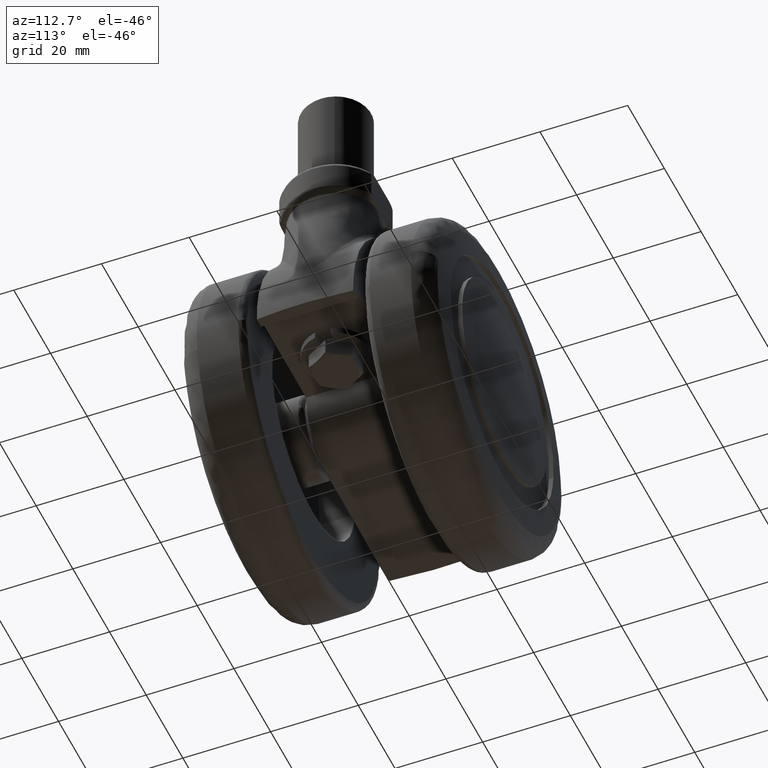
[diagram: clean part render]
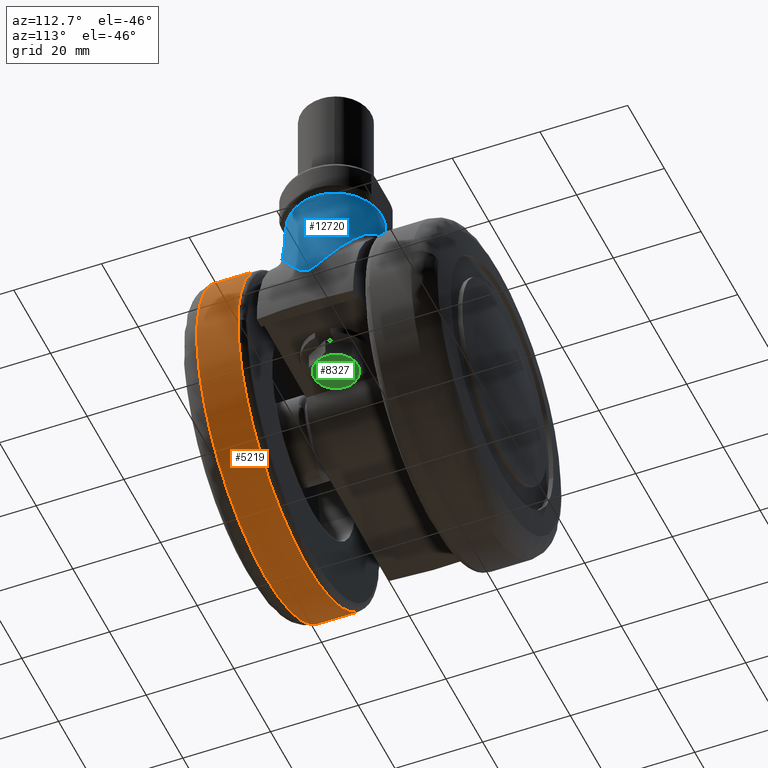
[diagram: same view with three faces highlighted in distinct colors, each labeled with its STEP entity id]
A machine part, auxiliary view with three faces highlighted in distinct colors.
Their STEP definitions:

[orange] entity #5219 — the highlighted face is a freeform B-spline surface patch.
#4992=CARTESIAN_POINT('',(-28.357530057848908,-24.399335000005490,-24.537736020631431));
#4993=VERTEX_POINT('',#4992);
#5026=CARTESIAN_POINT('',(25.334630804024130,-24.399335000005490,27.647901946147439));
#5027=VERTEX_POINT('',#5026);
#5041=CARTESIAN_POINT('',(25.334630846154258,-14.999999998324570,27.647901907541019));
#5042=VERTEX_POINT('',#5041);
#5043=CARTESIAN_POINT('',(25.334630804024130,-24.399335000005490,27.647901946147439));
#5044=CARTESIAN_POINT('',(25.334630846154258,-14.999999998324570,27.647901907541019));
#5045=QUASI_UNIFORM_CURVE('',1,(#5043,#5044),.UNSPECIFIED.,.F.,.U.);
#5046=EDGE_CURVE('',#5027,#5042,#5045,.T.);
#5080=CARTESIAN_POINT('',(-28.357531062064691,-14.999999997795680,-24.537734860087301));
#5081=VERTEX_POINT('',#5080);
#5095=CARTESIAN_POINT('',(-28.357530057848908,-24.399335000005490,-24.537736020631431));
#5096=CARTESIAN_POINT('',(-28.357531062064691,-14.999999997795680,-24.537734860087301));
#5097=QUASI_UNIFORM_CURVE('',1,(#5095,#5096),.UNSPECIFIED.,.F.,.U.);
#5098=EDGE_CURVE('',#4993,#5081,#5097,.T.);
#5103=CARTESIAN_POINT('',(25.334632785587250,-24.634318376232869,27.647900130379639));
#5104=CARTESIAN_POINT('',(52.982532915966900,-24.634318376232862,2.313267344792387));
#5105=CARTESIAN_POINT('',(27.647900130379639,-24.634318376232869,-25.334632785587250));
#5106=CARTESIAN_POINT('',(2.313267344792387,-24.634318376232862,-52.982532915966900));
#5107=CARTESIAN_POINT('',(-25.334632785587250,-24.634318376232869,-27.647900130379639));
#5108=CARTESIAN_POINT('',(-26.936160323454800,-24.634318376232866,-26.180370521384233));
#5109=CARTESIAN_POINT('',(-28.357529091336133,-24.634318376232862,-24.537737137601422));
#5110=CARTESIAN_POINT('',(25.334632785587250,-14.759142034221910,27.647900130379639));
#5111=CARTESIAN_POINT('',(52.982532915966900,-14.759142034221913,2.313267344792387));
#5112=CARTESIAN_POINT('',(27.647900130379639,-14.759142034221910,-25.334632785587250));
#5113=CARTESIAN_POINT('',(2.313267344792387,-14.759142034221913,-52.982532915966900));
#5114=CARTESIAN_POINT('',(-25.334632785587250,-14.759142034221910,-27.647900130379639));
#5115=CARTESIAN_POINT('',(-26.936160323454800,-14.759142034221902,-26.180370521384233));
#5116=CARTESIAN_POINT('',(-28.357529091336133,-14.759142034221908,-24.537737137601422));
#5124=(BOUNDED_SURFACE()B_SPLINE_SURFACE(2,1,((#5103,#5110),(#5104,#5111),(#5105,#5112),(#5106,#5113),(#5107,#5114),(#5108,#5115),(#5109,#5116)),.UNSPECIFIED.,.F.,.F.,.U.)B_SPLINE_SURFACE_WITH_KNOTS((3,2,2,3),(2,2),(0.0,62.132034355964237,124.264068711928500,129.234631460405610),(0.0,9.875176342010960),.UNSPECIFIED.)GEOMETRIC_REPRESENTATION_ITEM()RATIONAL_B_SPLINE_SURFACE(((1.0,1.0),(0.707106781186548,0.707106781186548),(1.0,1.0),(0.707106781186548,0.707106781186548),(1.0,1.0),(0.976568542494924,0.976568542494924),(0.956886118190660,0.956886118190660)))REPRESENTATION_ITEM('')SURFACE());
#5125=CARTESIAN_POINT('',(0.0,-24.399335000005451,-37.500000000000000));
#5126=VERTEX_POINT('',#5125);
#5127=CARTESIAN_POINT('',(0.0,-24.399335000005451,-37.500000000000000));
#5128=CARTESIAN_POINT('',(-17.141298915480817,-24.399335000005458,-37.499999999999993));
#5129=CARTESIAN_POINT('',(-28.357530057848937,-24.399335000005454,-24.537736020631442));
#5137=(BOUNDED_CURVE()B_SPLINE_CURVE(2,(#5127,#5128,#5129),.UNSPECIFIED.,.F.,.U.)B_SPLINE_CURVE_WITH_KNOTS((3,3),(0.500000000000000,0.635882125899661),.UNSPECIFIED.)CURVE()GEOMETRIC_REPRESENTATION_ITEM()RATIONAL_B_SPLINE_CURVE((1.0,0.840804187064134,0.854663298096670))REPRESENTATION_ITEM(''));
#5138=EDGE_CURVE('',#5126,#4993,#5137,.T.);
#5139=ORIENTED_EDGE('',*,*,#5138,.T.);
#5140=ORIENTED_EDGE('',*,*,#5098,.T.);
#5141=CARTESIAN_POINT('',(0.0,-15.0,-37.500000000000000));
#5142=VERTEX_POINT('',#5141);
#5143=CARTESIAN_POINT('',(0.0,-15.0,-37.500000000000000));
#5144=CARTESIAN_POINT('',(-17.141299843162088,-15.000000000000002,-37.500000000000000));
#5145=CARTESIAN_POINT('',(-28.357531062064695,-14.999999997795685,-24.537734860087301));
#5153=(BOUNDED_CURVE()B_SPLINE_CURVE(2,(#5143,#5144,#5145),.UNSPECIFIED.,.F.,.U.)B_SPLINE_CURVE_WITH_KNOTS((3,3),(0.500000000000000,0.635882132082846),.UNSPECIFIED.)CURVE()GEOMETRIC_REPRESENTATION_ITEM()RATIONAL_B_SPLINE_CURVE((1.0,0.840804179820082,0.854663299357961))REPRESENTATION_ITEM(''));
#5154=EDGE_CURVE('',#5142,#5081,#5153,.T.);
#5155=ORIENTED_EDGE('',*,*,#5154,.F.);
#5156=CARTESIAN_POINT('',(37.488157098123487,-14.999999993783151,0.942378579134925));
#5157=VERTEX_POINT('',#5156);
#5158=CARTESIAN_POINT('',(37.488157098123501,-14.999999993783149,0.942378579134925));
#5159=CARTESIAN_POINT('',(37.500000000000000,-14.999999999999998,0.471263704636508));
#5160=CARTESIAN_POINT('',(37.500000000000000,-15.0,0.0));
#5161=CARTESIAN_POINT('',(37.500000000000000,-14.999999999999996,-37.500000000000000));
#5162=CARTESIAN_POINT('',(0.0,-15.0,-37.500000000000000));
#5170=(BOUNDED_CURVE()B_SPLINE_CURVE(2,(#5158,#5159,#5160,#5161,#5162),.UNSPECIFIED.,.F.,.U.)B_SPLINE_CURVE_WITH_KNOTS((3,2,3),(0.245579891769716,0.250000000000000,0.500000000000000),.UNSPECIFIED.)CURVE()GEOMETRIC_REPRESENTATION_ITEM()RATIONAL_B_SPLINE_CURVE((0.989826157681370,0.994821521091714,1.0,0.707106781186547,1.0))REPRESENTATION_ITEM(''));
#5171=EDGE_CURVE('',#5157,#5142,#5170,.T.);
#5172=ORIENTED_EDGE('',*,*,#5171,.F.);
#5173=CARTESIAN_POINT('',(25.334630846154262,-14.999999998324570,27.647901907541016));
#5174=CARTESIAN_POINT('',(37.087558621789391,-14.999999996493150,16.878329317438041));
#5175=CARTESIAN_POINT('',(37.488157098123494,-14.999999993783153,0.942378579134925));
#5183=(BOUNDED_CURVE()B_SPLINE_CURVE(2,(#5173,#5174,#5175),.UNSPECIFIED.,.F.,.U.)B_SPLINE_CURVE_WITH_KNOTS((3,3),(0.118415198494578,0.245579891769716),.UNSPECIFIED.)CURVE()GEOMETRIC_REPRESENTATION_ITEM()RATIONAL_B_SPLINE_CURVE((0.853959782145049,0.846111609806280,0.989826157681370))REPRESENTATION_ITEM(''));
#5184=EDGE_CURVE('',#5042,#5157,#5183,.T.);
#5185=ORIENTED_EDGE('',*,*,#5184,.F.);
#5186=ORIENTED_EDGE('',*,*,#5046,.F.);
#5187=CARTESIAN_POINT('',(37.260424144492191,-24.399335001037620,-4.232114432827082));
#5188=VERTEX_POINT('',#5187);
#5189=CARTESIAN_POINT('',(25.334630804024133,-24.399335000005486,27.647901946147446));
#5190=CARTESIAN_POINT('',(37.499999999999993,-24.399335000005451,16.500396512461588));
#5191=CARTESIAN_POINT('',(37.500000000000000,-24.399335000005451,0.0));
#5192=CARTESIAN_POINT('',(37.500000000000000,-24.399335000005447,-2.122838293787377));
#5193=CARTESIAN_POINT('',(37.260424144492184,-24.399335001037628,-4.232114432827083));
#5201=(BOUNDED_CURVE()B_SPLINE_CURVE(2,(#5189,#5190,#5191,#5192,#5193),.UNSPECIFIED.,.F.,.U.)B_SPLINE_CURVE_WITH_KNOTS((3,2,3),(0.118415198264547,0.250000000000000,0.269555763444004),.UNSPECIFIED.)CURVE()GEOMETRIC_REPRESENTATION_ITEM()RATIONAL_B_SPLINE_CURVE((0.853959782173443,0.845838815491093,1.0,0.977088997994125,0.957762333072186))REPRESENTATION_ITEM(''));
#5202=EDGE_CURVE('',#5027,#5188,#5201,.T.);
#5203=ORIENTED_EDGE('',*,*,#5202,.T.);
#5204=CARTESIAN_POINT('',(37.260424144492191,-24.399335001037628,-4.232114432827082));
#5205=CARTESIAN_POINT('',(33.481790328760539,-24.399335000005458,-37.499999999999993));
#5206=CARTESIAN_POINT('',(0.0,-24.399335000005451,-37.500000000000000));
#5214=(BOUNDED_CURVE()B_SPLINE_CURVE(2,(#5204,#5205,#5206),.UNSPECIFIED.,.F.,.U.)B_SPLINE_CURVE_WITH_KNOTS((3,3),(0.269555763444004,0.500000000000000),.UNSPECIFIED.)CURVE()GEOMETRIC_REPRESENTATION_ITEM()RATIONAL_B_SPLINE_CURVE((0.957762333072186,0.730017783192423,1.0))REPRESENTATION_ITEM(''));
#5215=EDGE_CURVE('',#5188,#5126,#5214,.T.);
#5216=ORIENTED_EDGE('',*,*,#5215,.T.);
#5217=EDGE_LOOP('',(#5139,#5140,#5155,#5172,#5185,#5186,#5203,#5216));
#5218=FACE_OUTER_BOUND('',#5217,.T.);
#5219=ADVANCED_FACE('',(#5218),#5124,.T.);

[blue] entity #12720 — the highlighted face is a freeform B-spline surface patch.
#11213=CARTESIAN_POINT('',(9.734874135307969,2.875159400437090,39.0));
#11214=VERTEX_POINT('',#11213);
#11251=CARTESIAN_POINT('',(9.734874135308280,-2.875159400438115,39.0));
#11252=VERTEX_POINT('',#11251);
#11384=CARTESIAN_POINT('',(15.834273644007199,-9.424800640168330,36.042992598005412));
#11385=VERTEX_POINT('',#11384);
#11401=CARTESIAN_POINT('',(9.734874135308280,-2.875159400438115,39.0));
#11402=CARTESIAN_POINT('',(9.765014946852586,-2.971725987100927,38.987961932139498));
#11403=CARTESIAN_POINT('',(9.796699416023380,-3.067957749255542,38.975272131350849));
#11404=CARTESIAN_POINT('',(9.863174507820219,-3.259745863016546,38.948558339544078));
#11405=CARTESIAN_POINT('',(9.898041406330020,-3.355497784002150,38.934503446514952));
#11406=CARTESIAN_POINT('',(10.006728428578230,-3.640148634965251,38.890530961459071));
#11407=CARTESIAN_POINT('',(10.084478166912660,-3.826137806987287,38.858870211924213));
#11408=CARTESIAN_POINT('',(10.332785888984800,-4.373272351155762,38.756894622463513));
#11409=CARTESIAN_POINT('',(10.518355652744630,-4.723619845631813,38.679613890553057));
#11410=CARTESIAN_POINT('',(10.926585075179609,-5.397147074816104,38.505940396580783));
#11411=CARTESIAN_POINT('',(11.149259347742349,-5.720317123013894,38.409544060022732));
#11412=CARTESIAN_POINT('',(11.509890872524030,-6.185149551346111,38.249585396609803));
#11413=CARTESIAN_POINT('',(11.634547182277871,-6.336766173946026,38.193698887509989));
#11414=CARTESIAN_POINT('',(11.828122530780670,-6.559198968923881,38.105833937558728));
#11415=CARTESIAN_POINT('',(11.893575072163550,-6.632308580095542,38.075950026399113));
#11416=CARTESIAN_POINT('',(12.025779794831941,-6.775953905039536,38.015215864299982));
#11417=CARTESIAN_POINT('',(12.092608204217830,-6.846577595190703,37.984331051875913));
#11418=CARTESIAN_POINT('',(12.430248689094460,-7.193857892863472,37.827311391866182));
#11419=CARTESIAN_POINT('',(12.711520939718110,-7.453052229230631,37.693405138172643));
#11420=CARTESIAN_POINT('',(13.293633666889081,-7.937272633191943,37.408568752348373));
#11421=CARTESIAN_POINT('',(13.594484183909090,-8.162284788316734,37.257635878864043));
#11422=CARTESIAN_POINT('',(14.058920017241670,-8.475670662809202,37.017877502471123));
#11423=CARTESIAN_POINT('',(14.215929892272550,-8.576103517511875,36.935729142439747));
#11424=CARTESIAN_POINT('',(14.454585433310600,-8.720843212216183,36.809069559548931));
#11425=CARTESIAN_POINT('',(14.534762874890280,-8.768162339423656,36.766221692821219));
#11426=CARTESIAN_POINT('',(14.695598953699900,-8.860539796690857,36.679655454487850));
#11427=CARTESIAN_POINT('',(14.776209515660611,-8.905574575668155,36.635963875234751));
#11428=CARTESIAN_POINT('',(15.180156851201581,-9.125156029700733,36.415462183829163));
#11429=CARTESIAN_POINT('',(15.506162540292291,-9.282971687857856,36.232525502262099));
#11430=CARTESIAN_POINT('',(15.834273644007190,-9.424800640168330,36.042992598005377));
#11431=B_SPLINE_CURVE_WITH_KNOTS('',3,(#11401,#11402,#11403,#11404,#11405,#11406,#11407,#11408,#11409,#11410,#11411,#11412,#11413,#11414,#11415,#11416,#11417,#11418,#11419,#11420,#11421,#11422,#11423,#11424,#11425,#11426,#11427,#11428,#11429,#11430),.UNSPECIFIED.,.F.,.U.,(4,2,2,2,2,2,2,2,2,2,2,2,2,2,4),(0.0,0.031250000000000,0.062500000000000,0.125000000000000,0.250000000000000,0.375000000000000,0.437500000000000,0.468750000000001,0.500000000000001,0.625000000000001,0.750000000000002,0.812500000000003,0.843750000000003,0.875000000000003,1.0),.UNSPECIFIED.);
#11432=EDGE_CURVE('',#11252,#11385,#11431,.T.);
#11567=CARTESIAN_POINT('',(15.834272163024050,9.424800000000001,36.042993453493153));
#11568=VERTEX_POINT('',#11567);
#11620=CARTESIAN_POINT('',(15.834272163024030,9.424800000000031,36.042993453493139));
#11621=CARTESIAN_POINT('',(15.507307004264360,9.283466341797638,36.231864388182878));
#11622=CARTESIAN_POINT('',(15.183217956223659,9.126588671450643,36.413732003489862));
#11623=CARTESIAN_POINT('',(14.542307384382291,8.778655094792176,36.763701596248048));
#11624=CARTESIAN_POINT('',(14.225479566498890,8.587615547346342,36.931805288436969));
#11625=CARTESIAN_POINT('',(13.757141502596960,8.272252911238834,37.173708558238673));
#11626=CARTESIAN_POINT('',(13.602896192294541,8.162792457947649,37.252264001329451));
#11627=CARTESIAN_POINT('',(13.298873120510450,7.935196166215691,37.405057824339643));
#11628=CARTESIAN_POINT('',(13.149648062189900,7.817479162857781,37.479019873976704));
#11629=CARTESIAN_POINT('',(12.710647610550110,7.452368673953901,37.693838785172048));
#11630=CARTESIAN_POINT('',(12.429523251913780,7.193045679702175,37.827641975410202));
#11631=CARTESIAN_POINT('',(11.892529837133189,6.640852731537313,38.077384226820762));
#11632=CARTESIAN_POINT('',(11.636648015730801,6.347997167485482,38.193326844980398));
#11633=CARTESIAN_POINT('',(11.274060772394190,5.881437445221686,38.354205244321427));
#11634=CARTESIAN_POINT('',(11.156487775333989,5.720934618763776,38.405764140315988));
#11635=CARTESIAN_POINT('',(10.931703898116970,5.394521469722281,38.503345159788402));
#11636=CARTESIAN_POINT('',(10.824167740370379,5.228237964098526,38.549514434549387));
#11637=CARTESIAN_POINT('',(10.516319186505450,4.720125799719843,38.680475196407713));
#11638=CARTESIAN_POINT('',(10.330719855956330,4.369066170604384,38.757749469488267));
#11639=CARTESIAN_POINT('',(10.083301114738109,3.823368784489873,38.859350381706143));
#11640=CARTESIAN_POINT('',(10.006002576978270,3.638277734453351,38.890824975990952));
#11641=CARTESIAN_POINT('',(9.898124002622998,3.355698993728345,38.934469853992752));
#11642=CARTESIAN_POINT('',(9.863510252711381,3.260681806607597,38.948423123941588));
#11643=CARTESIAN_POINT('',(9.797037506755521,3.068965567155710,38.975136555289090));
#11644=CARTESIAN_POINT('',(9.765141817261602,2.972132460640318,38.987911260823253));
#11645=CARTESIAN_POINT('',(9.734874135307935,2.875159400437097,38.999999999999979));
#11646=B_SPLINE_CURVE_WITH_KNOTS('',3,(#11620,#11621,#11622,#11623,#11624,#11625,#11626,#11627,#11628,#11629,#11630,#11631,#11632,#11633,#11634,#11635,#11636,#11637,#11638,#11639,#11640,#11641,#11642,#11643,#11644,#11645),.UNSPECIFIED.,.F.,.U.,(4,2,2,2,2,2,2,2,2,2,2,2,4),(0.0,0.125000000000000,0.250000000000000,0.312500000000000,0.375000000000000,0.499999999999999,0.624999999999999,0.687499999999999,0.749999999999999,0.875000000000000,0.937500000000000,0.968750000000000,1.0),.UNSPECIFIED.);
#11647=EDGE_CURVE('',#11568,#11214,#11646,.T.);
#11782=CARTESIAN_POINT('',(26.877747129820001,-9.424800640175180,27.080546258881650));
#11783=VERTEX_POINT('',#11782);
#11797=CARTESIAN_POINT('',(15.834273644007199,-9.424800640168330,36.042992598005412));
#11798=CARTESIAN_POINT('',(15.957821354711440,-9.478205239416715,35.971625429012043));
#11799=CARTESIAN_POINT('',(16.080474879437510,-9.528550747649826,35.896862832956977));
#11800=CARTESIAN_POINT('',(16.324467108684779,-9.623992687113347,35.741863585670067));
#11801=CARTESIAN_POINT('',(16.445983128545819,-9.669145522698260,35.661493388375632));
#11802=CARTESIAN_POINT('',(16.807137740395639,-9.796993914353118,35.414900180527688));
#11803=CARTESIAN_POINT('',(17.043792159563601,-9.872324009430907,35.243068456802533));
#11804=CARTESIAN_POINT('',(17.511979131786639,-10.007517437380070,34.889408490841298));
#11805=CARTESIAN_POINT('',(17.743479453118120,-10.067340560872999,34.707530818160052));
#11806=CARTESIAN_POINT('',(18.203417960249471,-10.174012160180320,34.336919483093517));
#11807=CARTESIAN_POINT('',(18.431842068133388,-10.220845274567351,34.148164750146591));
#11808=CARTESIAN_POINT('',(19.115173493928289,-10.344224146907150,33.575455915896342));
#11809=CARTESIAN_POINT('',(19.568077975353820,-10.403924809309640,33.185045392206490));
#11810=CARTESIAN_POINT('',(20.254297257199109,-10.463318131576340,32.600818806073363));
#11811=CARTESIAN_POINT('',(20.484200670487759,-10.478015731930860,32.406315361619733));
#11812=CARTESIAN_POINT('',(20.948082477971621,-10.496936920969111,32.019887235590367));
#11813=CARTESIAN_POINT('',(21.181613247936081,-10.501128212349981,31.828390078726208));
#11814=CARTESIAN_POINT('',(21.651974266879410,-10.498353798498240,31.450719061633372));
#11815=CARTESIAN_POINT('',(21.888948934563899,-10.491378916135430,31.264461591440689));
#11816=CARTESIAN_POINT('',(22.366058364612499,-10.465482318906830,30.896595462039809));
#11817=CARTESIAN_POINT('',(22.606185940065220,-10.446543312471061,30.714978512259570));
#11818=CARTESIAN_POINT('',(23.087628156215491,-10.396226099192480,30.353899025347740));
#11819=CARTESIAN_POINT('',(23.328820060684759,-10.364833037135890,30.174466953646689));
#11820=CARTESIAN_POINT('',(23.807325686735791,-10.290260054598820,29.815524759570071));
#11821=CARTESIAN_POINT('',(24.044856317711229,-10.247063046173491,29.635799242685401));
#11822=CARTESIAN_POINT('',(24.513553743951650,-10.150110281188031,29.272082182400400));
#11823=CARTESIAN_POINT('',(24.744711185984290,-10.096363775777590,29.088077066893941));
#11824=CARTESIAN_POINT('',(25.198355848847431,-9.980108177675335,28.712597097372079));
#11825=CARTESIAN_POINT('',(25.420844559444390,-9.917606668684879,28.521121735042559));
#11826=CARTESIAN_POINT('',(26.072977574327620,-9.720033512811925,27.931885441177410));
#11827=CARTESIAN_POINT('',(26.487067933749760,-9.574930112454259,27.519047386537139));
#11828=CARTESIAN_POINT('',(26.877747129820001,-9.424800640175189,27.080546258881650));
#11829=B_SPLINE_CURVE_WITH_KNOTS('',3,(#11797,#11798,#11799,#11800,#11801,#11802,#11803,#11804,#11805,#11806,#11807,#11808,#11809,#11810,#11811,#11812,#11813,#11814,#11815,#11816,#11817,#11818,#11819,#11820,#11821,#11822,#11823,#11824,#11825,#11826,#11827,#11828),.UNSPECIFIED.,.F.,.U.,(4,2,2,2,2,2,2,2,2,2,2,2,2,2,2,4),(0.0,0.031250000000000,0.062500000000000,0.125000000000001,0.187500000000001,0.250000000000002,0.375000000000001,0.437500000000001,0.500000000000001,0.562500000000001,0.625000000000001,0.687500000000000,0.750000000000000,0.812500000000000,0.875000000000000,1.0),.UNSPECIFIED.);
#11830=EDGE_CURVE('',#11385,#11783,#11829,.T.);
#11977=CARTESIAN_POINT('',(26.877748795748751,9.424799999995100,27.080544389031001));
#11978=VERTEX_POINT('',#11977);
#12008=CARTESIAN_POINT('',(26.877748795748751,9.424799999995100,27.080544389031001));
#12009=CARTESIAN_POINT('',(26.682718876187860,9.499745755344520,27.299447416595552));
#12010=CARTESIAN_POINT('',(26.481465353257661,9.573607309741529,27.512523616480969));
#12011=CARTESIAN_POINT('',(26.066787894455910,9.717050936288310,27.928022532611632));
#12012=CARTESIAN_POINT('',(25.853336953272510,9.786636509087694,28.130457885396108));
#12013=CARTESIAN_POINT('',(25.415140902445700,9.919273914150599,28.526157222115760));
#12014=CARTESIAN_POINT('',(25.191329411526930,9.982033202201258,28.718577423111249));
#12015=CARTESIAN_POINT('',(24.736054925331111,10.098453424623250,29.095071037110859));
#12016=CARTESIAN_POINT('',(24.504592552751919,10.152107174813739,29.279146244065000));
#12017=CARTESIAN_POINT('',(23.802351257756559,10.296932086798259,29.823760043387740));
#12018=CARTESIAN_POINT('',(23.323760361359810,10.371564941290799,30.176796451656120));
#12019=CARTESIAN_POINT('',(22.607686369263920,10.446377572934701,30.713854826430779));
#12020=CARTESIAN_POINT('',(22.369313103663561,10.465227416849320,30.894130738877660));
#12021=CARTESIAN_POINT('',(21.895170549245559,10.491117921585261,31.259619758134068));
#12022=CARTESIAN_POINT('',(21.659410274425799,10.498175090193710,31.444841883717320));
#12023=CARTESIAN_POINT('',(21.191001632184989,10.501202925716020,31.820760718128330));
#12024=CARTESIAN_POINT('',(20.958337976881040,10.497188361497100,32.011436115512872));
#12025=CARTESIAN_POINT('',(20.495219450878022,10.478624543567680,32.397047634650313));
#12026=CARTESIAN_POINT('',(20.264490430559849,10.464058058363230,32.592173348219930));
#12027=CARTESIAN_POINT('',(19.575056798251069,10.404805123758200,33.179039204875792));
#12028=CARTESIAN_POINT('',(19.119591456805122,10.344987543313650,33.571736357177272));
#12029=CARTESIAN_POINT('',(18.545917480104329,10.241450666327291,34.052560535722492));
#12030=CARTESIAN_POINT('',(18.430967173202362,10.219280366301239,34.148220694782999));
#12031=CARTESIAN_POINT('',(18.200396153839350,10.171823899536180,34.338215933835301));
#12032=CARTESIAN_POINT('',(18.084732315139700,10.146526009898849,34.432585002583458));
#12033=CARTESIAN_POINT('',(17.737271274486101,10.065818068179340,34.712469915354831));
#12034=CARTESIAN_POINT('',(17.504757973977451,10.005578655706380,34.895009630076260));
#12035=CARTESIAN_POINT('',(17.036261468500431,9.869998355577170,35.248605640971391));
#12036=CARTESIAN_POINT('',(16.800301283999531,9.794688050880897,35.419707433083893));
#12037=CARTESIAN_POINT('',(16.322589059547440,9.625347514085167,35.745603354388983));
#12038=CARTESIAN_POINT('',(16.080902121114949,9.531408038396261,35.900528027256840));
#12039=CARTESIAN_POINT('',(15.834272163024050,9.424799999999999,36.042993453493153));
#12040=B_SPLINE_CURVE_WITH_KNOTS('',3,(#12008,#12009,#12010,#12011,#12012,#12013,#12014,#12015,#12016,#12017,#12018,#12019,#12020,#12021,#12022,#12023,#12024,#12025,#12026,#12027,#12028,#12029,#12030,#12031,#12032,#12033,#12034,#12035,#12036,#12037,#12038,#12039),.UNSPECIFIED.,.F.,.U.,(4,2,2,2,2,2,2,2,2,2,2,2,2,2,2,4),(0.0,0.062500000000000,0.125000000000000,0.187500000000000,0.249999999999999,0.374999999999999,0.437500000000000,0.499999999999999,0.562499999999999,0.624999999999999,0.749999999999999,0.781249999999999,0.812499999999999,0.874999999999999,0.937500000000000,1.0),.UNSPECIFIED.);
#12041=EDGE_CURVE('',#11978,#11568,#12040,.T.);
#12421=CARTESIAN_POINT('',(26.877747129820008,-9.424800640175176,27.080546258881661));
#12422=CARTESIAN_POINT('',(27.431538442782720,-9.211990753977187,26.458966855845620));
#12423=CARTESIAN_POINT('',(27.964202587116660,-8.973502268622996,25.825171062186168));
#12424=CARTESIAN_POINT('',(28.604584162462050,-8.647189486484791,25.017391968762102));
#12425=CARTESIAN_POINT('',(28.731483164926789,-8.580455529879796,24.854930197936248));
#12426=CARTESIAN_POINT('',(28.981951110527600,-8.444668674251791,24.529490922650950));
#12427=CARTESIAN_POINT('',(29.105589420005320,-8.375583818275683,24.366429850494580));
#12428=CARTESIAN_POINT('',(29.471822995071939,-8.164898623419768,23.876211893973640));
#12429=CARTESIAN_POINT('',(29.709739943627682,-8.019872923363041,23.548019389902990));
#12430=CARTESIAN_POINT('',(30.405501028872120,-7.572039584883481,22.559247660703800));
#12431=CARTESIAN_POINT('',(30.845394492563749,-7.256559592287999,21.894454684848021));
#12432=CARTESIAN_POINT('',(31.680096981457069,-6.594809048670595,20.553756699998900));
#12433=CARTESIAN_POINT('',(32.074902435686070,-6.248579766389152,19.877828519127441));
#12434=CARTESIAN_POINT('',(32.821011611255983,-5.525273461557999,18.515830668020708));
#12435=CARTESIAN_POINT('',(33.172329845116813,-5.148372155787472,17.829680010591371));
#12436=CARTESIAN_POINT('',(33.666881889292021,-4.555450108878508,16.795229030595301));
#12437=CARTESIAN_POINT('',(33.826317809313068,-4.353161984810021,16.449561672571068));
#12438=CARTESIAN_POINT('',(34.057216968387202,-4.041137503705516,15.930533042039110));
#12439=CARTESIAN_POINT('',(34.132863893716021,-3.935602190719856,15.757303619787841));
#12440=CARTESIAN_POINT('',(34.281016338526690,-3.721695765924499,15.411684052932740));
#12441=CARTESIAN_POINT('',(34.353520631630232,-3.613336033889618,15.239302616754610));
#12442=CARTESIAN_POINT('',(34.566222244021539,-3.283226178871517,14.724001996539361));
#12443=CARTESIAN_POINT('',(34.701648171116481,-3.056667706511357,14.382778651070771));
#12444=CARTESIAN_POINT('',(34.894342094140931,-2.701091745995821,13.878481767676639));
#12445=CARTESIAN_POINT('',(34.956825466216557,-2.579903623405108,13.711665614736511));
#12446=CARTESIAN_POINT('',(35.077971871825028,-2.330213766607822,13.381933413613741));
#12447=CARTESIAN_POINT('',(35.136641673410637,-2.201748444029421,13.218993240507880));
#12448=CARTESIAN_POINT('',(35.249576827492362,-1.934088800688256,12.899295393268689));
#12449=CARTESIAN_POINT('',(35.303861760722199,-1.794997416866220,12.742469688979419));
#12450=CARTESIAN_POINT('',(35.368217632899643,-1.610230814857686,12.553094733965359));
#12451=CARTESIAN_POINT('',(35.380911230217620,-1.572718728327919,12.515561634184751));
#12452=CARTESIAN_POINT('',(35.405910720135907,-1.496398779252959,12.441297537588930));
#12453=CARTESIAN_POINT('',(35.418020964106447,-1.458199946100822,12.405149484725991));
#12454=CARTESIAN_POINT('',(35.453691948504670,-1.341565761685799,12.298201919726941));
#12455=CARTESIAN_POINT('',(35.476420259459381,-1.261646798127146,12.229406438960821));
#12456=CARTESIAN_POINT('',(35.519289239817176,-1.096013088224957,12.098598698932131));
#12457=CARTESIAN_POINT('',(35.539436255438687,-1.010315780983556,12.036565557280770));
#12458=CARTESIAN_POINT('',(35.567136391223393,-0.875701160165791,11.950680440214260));
#12459=CARTESIAN_POINT('',(35.575946885378023,-0.829810186276578,11.923255763860720));
#12460=CARTESIAN_POINT('',(35.592574041143003,-0.735558819740049,11.871332191317340));
#12461=CARTESIAN_POINT('',(35.600354976354772,-0.687362793959521,11.846944474813430));
#12462=CARTESIAN_POINT('',(35.621606953361990,-0.540805455704454,11.780154126468251));
#12463=CARTESIAN_POINT('',(35.633115029512680,-0.439894444457601,11.743727535161460));
#12464=CARTESIAN_POINT('',(35.645244239294229,-0.282151516227890,11.705247612194620));
#12465=CARTESIAN_POINT('',(35.648434303076847,-0.228140666050046,11.695105868471780));
#12466=CARTESIAN_POINT('',(35.652763559126470,-0.120326570985241,11.681334893076240));
#12467=CARTESIAN_POINT('',(35.655091479442483,-0.012414598757058,11.673920024388311));
#12468=CARTESIAN_POINT('',(35.653379898782369,0.095695463206858,11.679372466048250));
#12469=CARTESIAN_POINT('',(35.649642918377737,0.203904650513568,11.691262529394360));
#12470=CARTESIAN_POINT('',(35.646742690597392,0.258172001876218,11.700486541995209));
#12471=CARTESIAN_POINT('',(35.635320981754923,0.417763529179566,11.736739591887710));
#12472=CARTESIAN_POINT('',(35.624237780899662,0.519053412661900,11.771844652234931));
#12473=CARTESIAN_POINT('',(35.596879178469003,0.714214608126808,11.857901044839320));
#12474=CARTESIAN_POINT('',(35.580585513783362,0.808108924292738,11.908906042575021));
#12475=CARTESIAN_POINT('',(35.543942657962333,0.990179285052904,12.022652358762860));
#12476=CARTESIAN_POINT('',(35.523761636809468,1.077476388913930,12.084866441674780));
#12477=CARTESIAN_POINT('',(35.480947814145189,1.245172783340882,12.215660554732180));
#12478=CARTESIAN_POINT('',(35.458276699272787,1.325749483891231,12.284362802042629));
#12479=CARTESIAN_POINT('',(35.410912067271347,1.482121665265557,12.426539637664630));
#12480=CARTESIAN_POINT('',(35.386214902507419,1.557905335473423,12.500026462926160));
#12481=CARTESIAN_POINT('',(35.335111577677232,1.705810873732908,12.650601882537149));
#12482=CARTESIAN_POINT('',(35.308763989078457,1.777747623143219,12.727517222777919));
#12483=CARTESIAN_POINT('',(35.254854318391253,1.918079165636043,12.883342488891300));
#12484=CARTESIAN_POINT('',(35.227263317727733,1.986549933592995,12.962338308113461));
#12485=CARTESIAN_POINT('',(35.142778291691187,2.187928025212838,13.201831102181551));
#12486=CARTESIAN_POINT('',(35.084182961239861,2.316856596977297,13.364794262256330));
#12487=CARTESIAN_POINT('',(34.963074996485723,2.567524465172267,13.694866985063010));
#12488=CARTESIAN_POINT('',(34.900555304814063,2.689227999900667,13.862001739584970));
#12489=CARTESIAN_POINT('',(34.707609414133422,3.046410352024187,14.367586642073720));
#12490=CARTESIAN_POINT('',(34.571752802226420,3.274201787549714,14.710258865316010));
#12491=CARTESIAN_POINT('',(34.288069493437490,3.715339576600409,15.398198998860909));
#12492=CARTESIAN_POINT('',(34.140082122857471,3.928812709793438,15.743932678077041));
#12493=CARTESIAN_POINT('',(33.909178162264752,4.241351994539437,16.263459606894688));
#12494=CARTESIAN_POINT('',(33.830719327983530,4.344229585799865,16.436802820028451));
#12495=CARTESIAN_POINT('',(33.670835731075947,4.547667035015350,16.783653205842999));
#12496=CARTESIAN_POINT('',(33.589421854072420,4.648208145568536,16.957132928914579));
#12497=CARTESIAN_POINT('',(33.175826281998312,5.144602696009164,17.822825061016552));
#12498=CARTESIAN_POINT('',(32.823463147485157,5.522788738589746,18.511223609952982));
#12499=CARTESIAN_POINT('',(32.075729280058567,6.247885830936366,19.876450424017161));
#12500=CARTESIAN_POINT('',(31.680343243807020,6.594612658503806,20.553359710029738));
#12501=CARTESIAN_POINT('',(30.845191428148681,7.256721735154597,21.894782290279160));
#12502=CARTESIAN_POINT('',(30.405428036939281,7.572059876591542,22.559318776025570));
#12503=CARTESIAN_POINT('',(29.479036670757431,8.168393969164134,23.875912892376810));
#12504=CARTESIAN_POINT('',(28.992421027983280,8.449392945262121,24.527976763812401));
#12505=CARTESIAN_POINT('',(28.352464205908571,8.775701497513698,25.335465013284331));
#12506=CARTESIAN_POINT('',(28.222797754502910,8.839750526720344,25.496690012436598));
#12507=CARTESIAN_POINT('',(27.960608976820659,8.965035527062273,25.817904851214958));
#12508=CARTESIAN_POINT('',(27.828260137555080,9.026191393719129,25.977685420690118));
#12509=CARTESIAN_POINT('',(27.427425778246128,9.205066688061944,26.454558490136790));
#12510=CARTESIAN_POINT('',(27.155154133149100,9.318199163588842,26.769182581795860));
#12511=CARTESIAN_POINT('',(26.877748795748719,9.424799999995120,27.080544389031012));
#12512=B_SPLINE_CURVE_WITH_KNOTS('',3,(#12421,#12422,#12423,#12424,#12425,#12426,#12427,#12428,#12429,#12430,#12431,#12432,#12433,#12434,#12435,#12436,#12437,#12438,#12439,#12440,#12441,#12442,#12443,#12444,#12445,#12446,#12447,#12448,#12449,#12450,#12451,#12452,#12453,#12454,#12455,#12456,#12457,#12458,#12459,#12460,#12461,#12462,#12463,#12464,#12465,#12466,#12467,#12468,#12469,#12470,#12471,#12472,#12473,#12474,#12475,#12476,#12477,#12478,#12479,#12480,#12481,#12482,#12483,#12484,#12485,#12486,#12487,#12488,#12489,#12490,#12491,#12492,#12493,#12494,#12495,#12496,#12497,#12498,#12499,#12500,#12501,#12502,#12503,#12504,#12505,#12506,#12507,#12508,#12509,#12510,#12511),.UNSPECIFIED.,.F.,.U.,(4,2,2,2,2,2,2,2,2,2,2,2,2,2,2,2,2,2,2,2,2,2,2,1,2,2,2,2,2,2,2,2,2,2,2,2,2,2,2,2,2,2,2,2,2,4),(0.0,0.062500000000000,0.078125000000000,0.093750000000001,0.125000000000001,0.187500000000002,0.250000000000002,0.312500000000003,0.343750000000004,0.359375000000004,0.375000000000004,0.406250000000004,0.421875000000004,0.437500000000004,0.453125000000004,0.457031250000004,0.460937500000004,0.468750000000004,0.476562500000004,0.480468750000004,0.484375000000004,0.492187500000004,0.496093750000004,0.500000000000004,0.503906250000004,0.507812500000004,0.515625000000004,0.523437500000004,0.531250000000004,0.539062500000004,0.546875000000004,0.554687500000004,0.562500000000004,0.578125000000003,0.593750000000003,0.625000000000003,0.656250000000003,0.671875000000003,0.687500000000003,0.750000000000002,0.812500000000002,0.875000000000001,0.937500000000001,0.953125000000001,0.968750000000000,1.0),.UNSPECIFIED.);
#12513=EDGE_CURVE('',#11783,#11978,#12512,.T.);
#12524=CARTESIAN_POINT('',(9.734874135308228,-2.875159400438114,39.0));
#12525=CARTESIAN_POINT('',(12.277823730973108,-11.662172655083738,39.0));
#12526=CARTESIAN_POINT('',(21.475438907018340,-10.399187534074770,39.0));
#12527=CARTESIAN_POINT('',(30.673054083063175,-9.136202413065858,39.0));
#12528=CARTESIAN_POINT('',(30.673054083063182,4.637220E-013,39.0));
#12529=CARTESIAN_POINT('',(30.673054083063175,9.136202413066656,39.0));
#12530=CARTESIAN_POINT('',(21.475438907017431,10.399187534074899,39.0));
#12531=CARTESIAN_POINT('',(12.277823730972070,11.662172655083083,39.0));
#12532=CARTESIAN_POINT('',(9.734874135307969,2.875159400437090,39.0));
#12540=(BOUNDED_CURVE()B_SPLINE_CURVE(2,(#12524,#12525,#12526,#12527,#12528,#12529,#12530,#12531,#12532),.UNSPECIFIED.,.F.,.U.)B_SPLINE_CURVE_WITH_KNOTS((3,2,2,2,3),(0.0,0.250000000000000,0.500000000000000,0.750000000000000,1.0),.UNSPECIFIED.)CURVE()GEOMETRIC_REPRESENTATION_ITEM()RATIONAL_B_SPLINE_CURVE((1.0,0.754400297204961,1.0,0.754400297204961,1.0,0.754400297204961,1.0,0.754400297204961,1.0))REPRESENTATION_ITEM(''));
#12541=EDGE_CURVE('',#11252,#11214,#12540,.T.);
#12686=CARTESIAN_POINT('',(9.569205849360891,-2.786923381530203,39.770999880177428));
#12687=CARTESIAN_POINT('',(15.509994858940340,-2.786923381530203,7.183522043397875));
#12688=CARTESIAN_POINT('',(11.994888865837741,-11.743343718323672,40.213208727305350));
#12689=CARTESIAN_POINT('',(17.935677875417188,-11.743343718323670,7.625730890525802));
#12690=CARTESIAN_POINT('',(21.036027857876501,-10.387573925126540,41.861433834722632));
#12691=CARTESIAN_POINT('',(26.976816867455948,-10.387573925126540,9.273955997943078));
#12692=CARTESIAN_POINT('',(30.077166849915269,-9.031804131929402,43.509658942139907));
#12693=CARTESIAN_POINT('',(36.017955859494705,-9.031804131929404,10.922181105360355));
#12694=CARTESIAN_POINT('',(29.855159178627289,0.255069753875002,43.469186318261620));
#12695=CARTESIAN_POINT('',(35.795948188206737,0.255069753875002,10.881708481482070));
#12696=CARTESIAN_POINT('',(29.633151507339310,9.541943639679406,43.428713694383333));
#12697=CARTESIAN_POINT('',(35.573940516918775,9.541943639679406,10.841235857603785));
#12698=CARTESIAN_POINT('',(20.537900657039021,10.449744291981061,41.770623842770199));
#12699=CARTESIAN_POINT('',(26.478689666618472,10.449744291981061,9.183146005990647));
#12700=CARTESIAN_POINT('',(11.442649806738716,11.357544944282711,40.112533991157065));
#12701=CARTESIAN_POINT('',(17.383438816318165,11.357544944282720,7.525056154377508));
#12702=CARTESIAN_POINT('',(9.447792979564273,2.291937197355839,39.748865971989680));
#12703=CARTESIAN_POINT('',(15.388581989143720,2.291937197355846,7.161388135210130));
#12711=(BOUNDED_SURFACE()B_SPLINE_SURFACE(1,2,((#12686,#12688,#12690,#12692,#12694,#12696,#12698,#12700,#12702),(#12687,#12689,#12691,#12693,#12695,#12697,#12699,#12701,#12703)),.UNSPECIFIED.,.F.,.F.,.U.)B_SPLINE_SURFACE_WITH_KNOTS((2,2),(3,2,2,2,3),(0.0,33.124563179292473),(0.0,15.912376565203189,31.824753130406378,47.737129695609582,63.649506260812757),.UNSPECIFIED.)GEOMETRIC_REPRESENTATION_ITEM()RATIONAL_B_SPLINE_SURFACE(((1.0,0.748955720789002,1.0,0.748955720789002,1.0,0.748955720789002,1.0,0.748955720789002,1.0),(1.0,0.748955720789002,1.0,0.748955720789002,1.0,0.748955720789002,1.0,0.748955720789002,1.0)))REPRESENTATION_ITEM('')SURFACE());
#12712=ORIENTED_EDGE('',*,*,#12541,.F.);
#12713=ORIENTED_EDGE('',*,*,#11432,.T.);
#12714=ORIENTED_EDGE('',*,*,#11830,.T.);
#12715=ORIENTED_EDGE('',*,*,#12513,.T.);
#12716=ORIENTED_EDGE('',*,*,#12041,.T.);
#12717=ORIENTED_EDGE('',*,*,#11647,.T.);
#12718=EDGE_LOOP('',(#12712,#12713,#12714,#12715,#12716,#12717));
#12719=FACE_OUTER_BOUND('',#12718,.T.);
#12720=ADVANCED_FACE('',(#12719),#12711,.T.);

[green] entity #8327 — the highlighted face is a freeform B-spline surface patch.
#8230=CARTESIAN_POINT('',(14.500500023374560,5.499499980618061,-4.0));
#8231=CARTESIAN_POINT('',(25.499500248649010,5.499499980618061,-4.0));
#8232=CARTESIAN_POINT('',(14.500500023374560,-5.499500248838962,-4.0));
#8233=CARTESIAN_POINT('',(25.499500248649010,-5.499500248838962,-4.0));
#8234=B_SPLINE_SURFACE_WITH_KNOTS('',1,1,((#8230,#8232),(#8231,#8233)),.UNSPECIFIED.,.F.,.F.,.U.,(2,2),(2,2),(0.0,10.999000225274450),(0.0,10.999000229457019),.UNSPECIFIED.);
#8235=CARTESIAN_POINT('',(15.669873240538999,-2.500000416625555,-4.0));
#8236=VERTEX_POINT('',#8235);
#8237=CARTESIAN_POINT('',(15.669873226347351,2.500000424819115,-4.0));
#8238=VERTEX_POINT('',#8237);
#8239=CARTESIAN_POINT('',(15.669873240538999,-2.500000416625555,-4.0));
#8240=CARTESIAN_POINT('',(14.226496981077753,8.673617E-016,-4.0));
#8241=CARTESIAN_POINT('',(15.669873226347351,2.500000424819115,-4.0));
#8249=(BOUNDED_CURVE()B_SPLINE_CURVE(2,(#8239,#8240,#8241),.UNSPECIFIED.,.F.,.U.)CURVE()GEOMETRIC_REPRESENTATION_ITEM()QUASI_UNIFORM_CURVE()RATIONAL_B_SPLINE_CURVE((1.0,0.866025354730543,1.0))REPRESENTATION_ITEM(''));
#8250=EDGE_CURVE('',#8236,#8238,#8249,.T.);
#8251=ORIENTED_EDGE('',*,*,#8250,.T.);
#8252=CARTESIAN_POINT('',(20.0,5.0,-4.0));
#8253=VERTEX_POINT('',#8252);
#8254=CARTESIAN_POINT('',(15.669873226347351,2.500000424819115,-4.0));
#8255=CARTESIAN_POINT('',(17.113248981077806,4.999999999999999,-4.0));
#8256=CARTESIAN_POINT('',(20.0,5.0,-4.0));
#8264=(BOUNDED_CURVE()B_SPLINE_CURVE(2,(#8254,#8255,#8256),.UNSPECIFIED.,.F.,.U.)CURVE()GEOMETRIC_REPRESENTATION_ITEM()QUASI_UNIFORM_CURVE()RATIONAL_B_SPLINE_CURVE((1.0,0.866025428311384,1.0))REPRESENTATION_ITEM(''));
#8265=EDGE_CURVE('',#8238,#8253,#8264,.T.);
#8266=ORIENTED_EDGE('',*,*,#8265,.T.);
#8267=CARTESIAN_POINT('',(24.330126773652800,2.500000424819115,-4.0));
#8268=VERTEX_POINT('',#8267);
#8269=CARTESIAN_POINT('',(20.0,5.0,-4.0));
#8270=CARTESIAN_POINT('',(22.886751018922244,4.999999999999999,-4.0));
#8271=CARTESIAN_POINT('',(24.330126773652751,2.500000424819087,-4.0));
#8279=(BOUNDED_CURVE()B_SPLINE_CURVE(2,(#8269,#8270,#8271),.UNSPECIFIED.,.F.,.U.)CURVE()GEOMETRIC_REPRESENTATION_ITEM()QUASI_UNIFORM_CURVE()RATIONAL_B_SPLINE_CURVE((1.0,0.866025428311380,1.0))REPRESENTATION_ITEM(''));
#8280=EDGE_CURVE('',#8253,#8268,#8279,.T.);
#8281=ORIENTED_EDGE('',*,*,#8280,.T.);
#8282=CARTESIAN_POINT('',(24.330126773652800,-2.500000424819115,-4.0));
#8283=VERTEX_POINT('',#8282);
#8284=CARTESIAN_POINT('',(24.330126773652751,2.500000424819087,-4.0));
#8285=CARTESIAN_POINT('',(25.773503018922192,4.336809E-016,-4.000000000000000));
#8286=CARTESIAN_POINT('',(24.330126773652751,-2.500000424819086,-4.0));
#8294=(BOUNDED_CURVE()B_SPLINE_CURVE(2,(#8284,#8285,#8286),.UNSPECIFIED.,.F.,.U.)CURVE()GEOMETRIC_REPRESENTATION_ITEM()QUASI_UNIFORM_CURVE()RATIONAL_B_SPLINE_CURVE((1.0,0.866025354730550,1.0))REPRESENTATION_ITEM(''));
#8295=EDGE_CURVE('',#8268,#8283,#8294,.T.);
#8296=ORIENTED_EDGE('',*,*,#8295,.T.);
#8297=CARTESIAN_POINT('',(20.0,-5.0,-4.0));
#8298=VERTEX_POINT('',#8297);
#8299=CARTESIAN_POINT('',(24.330126773652751,-2.500000424819086,-4.0));
#8300=CARTESIAN_POINT('',(22.886751018922244,-5.0,-4.0));
#8301=CARTESIAN_POINT('',(20.0,-5.0,-4.0));
#8309=(BOUNDED_CURVE()B_SPLINE_CURVE(2,(#8299,#8300,#8301),.UNSPECIFIED.,.F.,.U.)CURVE()GEOMETRIC_REPRESENTATION_ITEM()QUASI_UNIFORM_CURVE()RATIONAL_B_SPLINE_CURVE((1.0,0.866025428311380,1.0))REPRESENTATION_ITEM(''));
#8310=EDGE_CURVE('',#8283,#8298,#8309,.T.);
#8311=ORIENTED_EDGE('',*,*,#8310,.T.);
#8312=CARTESIAN_POINT('',(20.0,-5.0,-4.0));
#8313=CARTESIAN_POINT('',(17.113248981077803,-5.000000000000001,-4.0));
#8314=CARTESIAN_POINT('',(15.669873240538999,-2.500000416625555,-4.0));
#8322=(BOUNDED_CURVE()B_SPLINE_CURVE(2,(#8312,#8313,#8314),.UNSPECIFIED.,.F.,.U.)CURVE()GEOMETRIC_REPRESENTATION_ITEM()QUASI_UNIFORM_CURVE()RATIONAL_B_SPLINE_CURVE((1.0,0.866025428311383,1.0))REPRESENTATION_ITEM(''));
#8323=EDGE_CURVE('',#8298,#8236,#8322,.T.);
#8324=ORIENTED_EDGE('',*,*,#8323,.T.);
#8325=EDGE_LOOP('',(#8251,#8266,#8281,#8296,#8311,#8324));
#8326=FACE_OUTER_BOUND('',#8325,.T.);
#8327=ADVANCED_FACE('',(#8326),#8234,.T.);